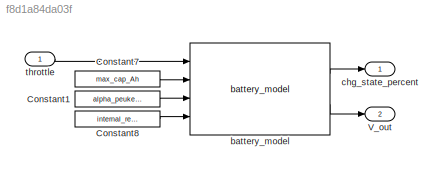
MODEL slx_f8d1a84da03f
KIND model
CONFIG AbsTol = auto
CONFIG EnableMultiTasking = off
CONFIG FixedStep = sim_dt
CONFIG MaxStep = auto
CONFIG MinStep = auto
CONFIG RelTol = 1e-3
CONFIG SampleTimeConstraint = Unconstrained
CONFIG Solver = ode4
CONFIG SolverName = ode4
CONFIG StartTime = 0.0
CONFIG StopTime = end_time
BLOCK [Constant] Constant1
  Value = alpha_peukert
BLOCK [Constant] Constant7
  Value = max_cap_Ah
BLOCK [Constant] Constant8
  Value = internal_resistance
BLOCK [Outport] V_out
  IconDisplay = Port number
  Port = 2
  SampleTime = output_dt
BLOCK [Reference] battery_model  REF=dyn_lib/battery_model
  Ports = [4, 2]
  SourceBlock = dyn_lib/battery_model
  SourceType = SubSystem
BLOCK [Outport] chg_state_percent
  IconDisplay = Port number
  SampleTime = output_dt
BLOCK [Inport] throttle
  IconDisplay = Port number
LINE Constant1:1 -> battery_model:3
LINE Constant7:1 -> battery_model:2
LINE Constant8:1 -> battery_model:4
LINE battery_model:1 -> chg_state_percent:1
LINE battery_model:2 -> V_out:1
LINE throttle:1 -> battery_model:1
